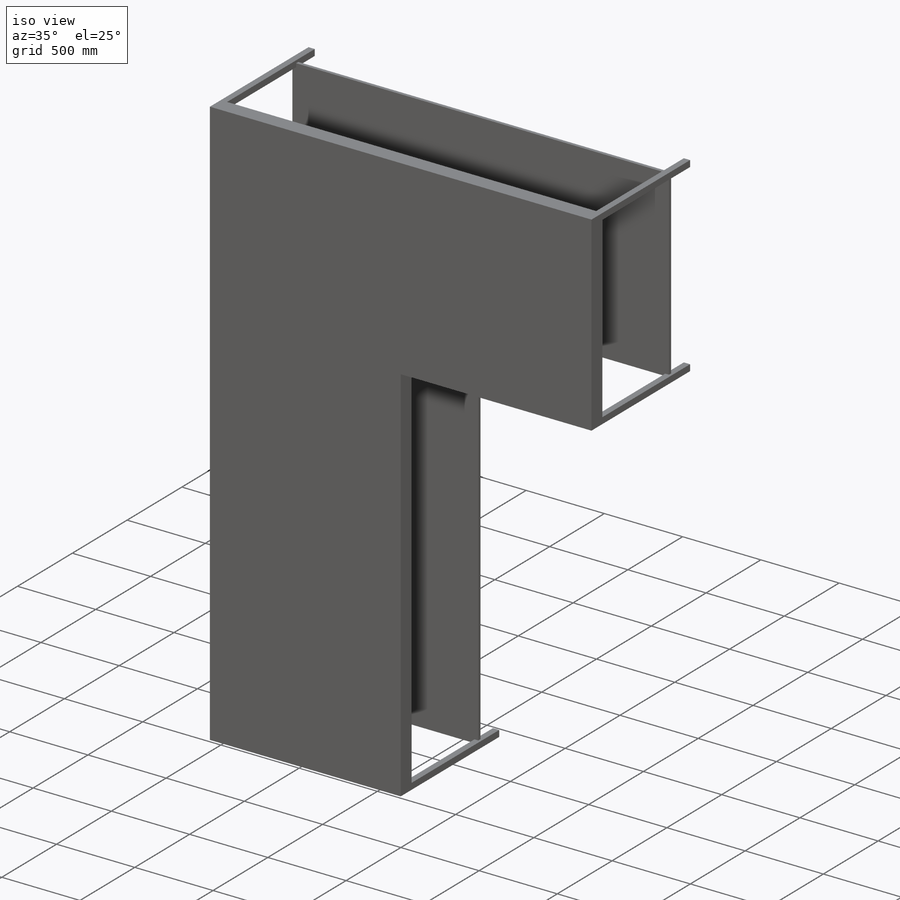
[diagram: iso view]
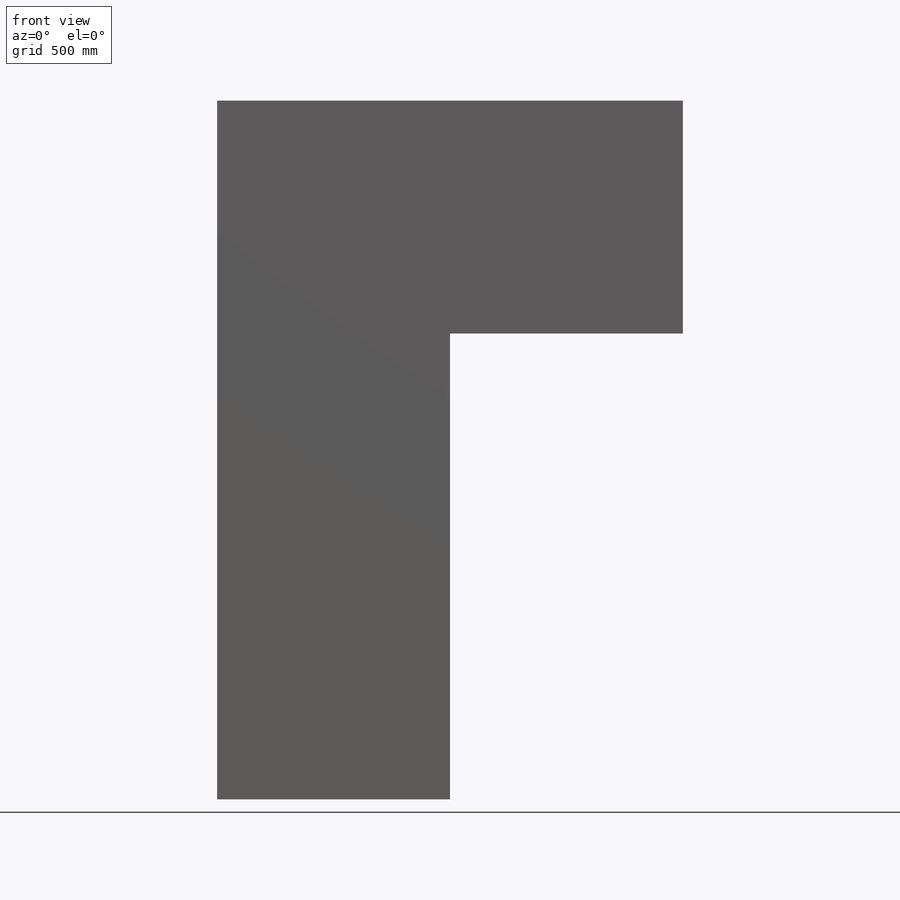
[diagram: front view]
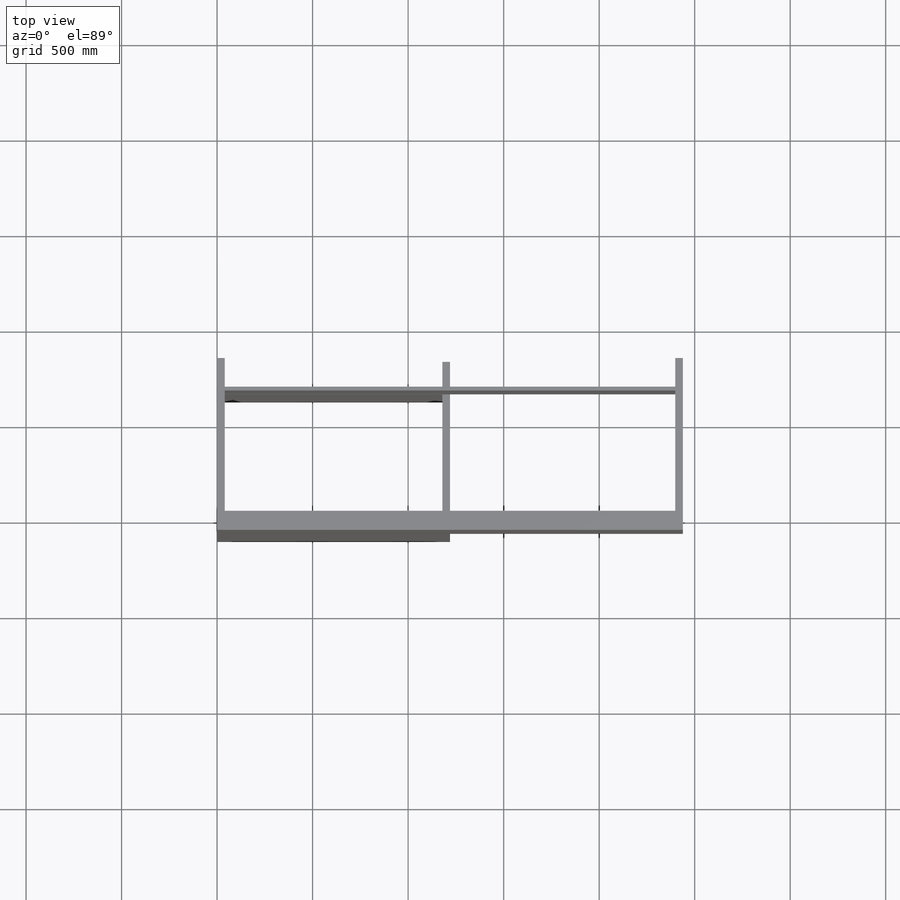
[diagram: top view]
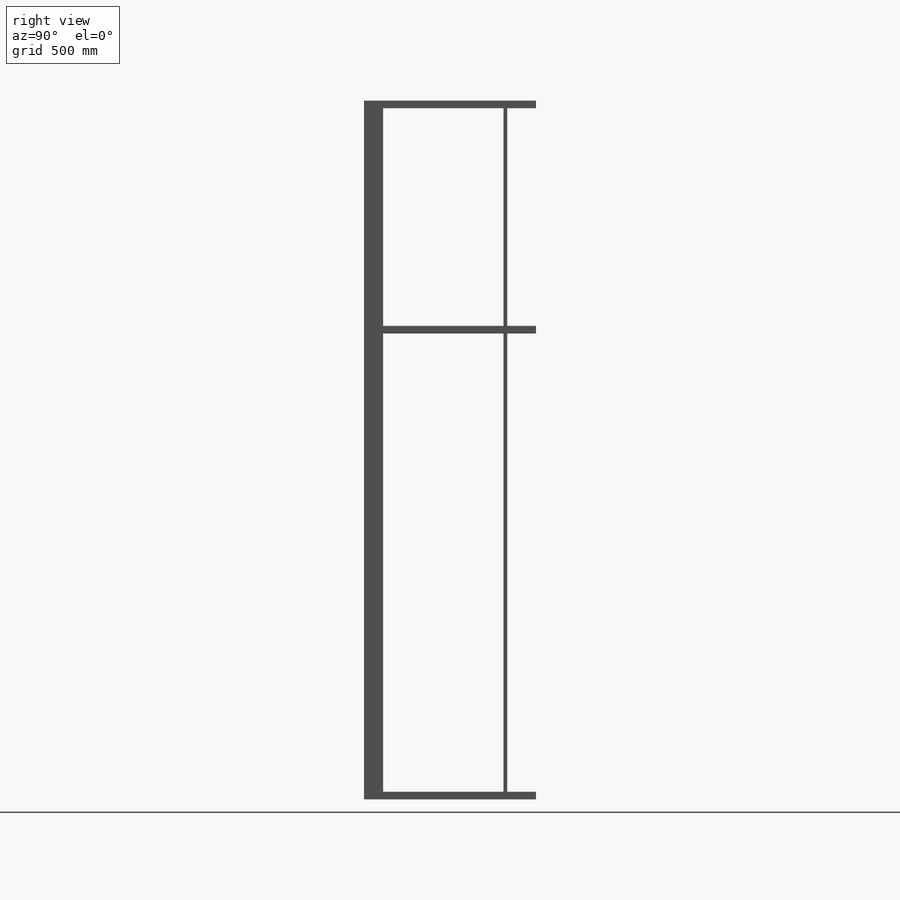
[diagram: right view]
SOLIDWORKS PART (.sldprt)
format: sldprt  version: not decoded by parser v0  size: 269,312 bytes
history: native  units: mm
features: sketch x4, extrude x3, material x1, cut_extrude x1, plane x1 (+12 scaffold rows collapsed)
feature tree (22):
  scaffold x12  (default folders/planes/origin — collapsed)
  material  "Material <not specified>"
  sketch  "Sketch3"  dims[c1.D1=2438.0mm c1.D2=1219.2mm c1.D3=1219.0mm c1.D4=2428.0mm c2.D1=2438.4mm c2.D3=1219.2mm c2.D4=2438.4mm]
  extrude  "Boss-Extrude1"  Depth=100mm
  sketch  "Sketch4"  dims[c1.D1=~109.964768mm c1.D2=~116.762233mm c2.D1=100.0mm c2.D2=100.0mm c2.D3=40.0mm c2.D4=40.0mm c2.D5=40.0mm c2.D6=40.0mm c2.D7=100.0mm c2.D8=100.0mm c2.D9=100.0mm c2.D10=100.0mm c2.D11=100.0mm c2.D12=100.0mm c3.D1=40.0mm c3.D2=40.0mm c3.D7=40.0mm c3.D8=100.0mm c3.D9=100.0mm c4.D8=40.0mm c4.D9=40.0mm c4.D10=40.0mm c4.D11=40.0mm c4.D12=40.0mm c4.D13=40.0mm c4.D14=40.0mm]
  extrude  "Boss-Extrude2"  Depth=800mm
  sketch  "Sketch5"  dims[c1.D1=120.0mm c1.D4=120.0mm c1.D3=120.0mm c1.D5=120.0mm c1.D6=120.0mm c1.D7=120.0mm c2.D1=120.0mm c2.D2=120.0mm c2.D3=120.0mm c2.D8=120.0mm c2.D9=120.0mm c2.D10=120.0mm c2.D12=120.0mm c3.D3=600.0mm c3.D4=600.0mm c4.D3=600.0mm c4.D4=600.0mm c5.D3=610.0mm c5.D5=1219.0mm c5.D6=760.0mm c5.D7=760.0mm c5.D8=~216.998193mm c6.D3=760.0mm c6.D8=600.0mm c6.D9=600.0mm c6.D11=850.0mm c6.D12=850.0mm c7.D3=850.0mm]
  cut_extrude  "Cut-Extrude2"  [1 undecoded]
  plane  "Plane1"  Offset=650mm
  sketch  "Sketch6"  dims[c1.D1=~2448.892347mm c1.D2=~1128.40823mm c2.D1=~1121.785837mm c2.D2=~2355.113283mm]
  extrude  "Boss-Extrude3"  Depth=20mm
decode coverage: 7 of 8 modeling features carry decoded parameters
note: ~ marks probable driven/reference dimensions
note: 1 parameter value undecoded
note: suppression state not decoded; provenance and decode notes live in map.json
